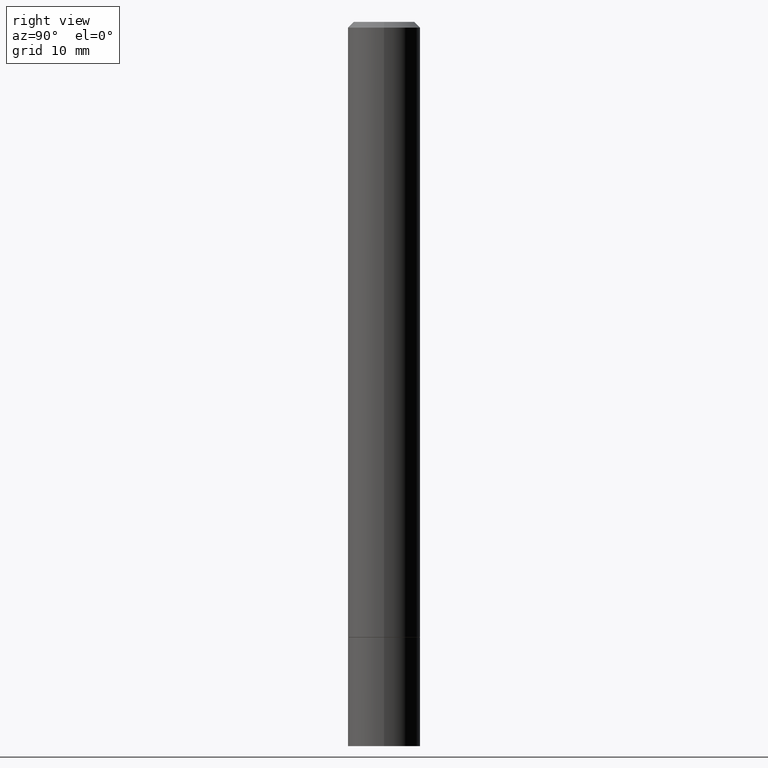
[diagram: clean part render]
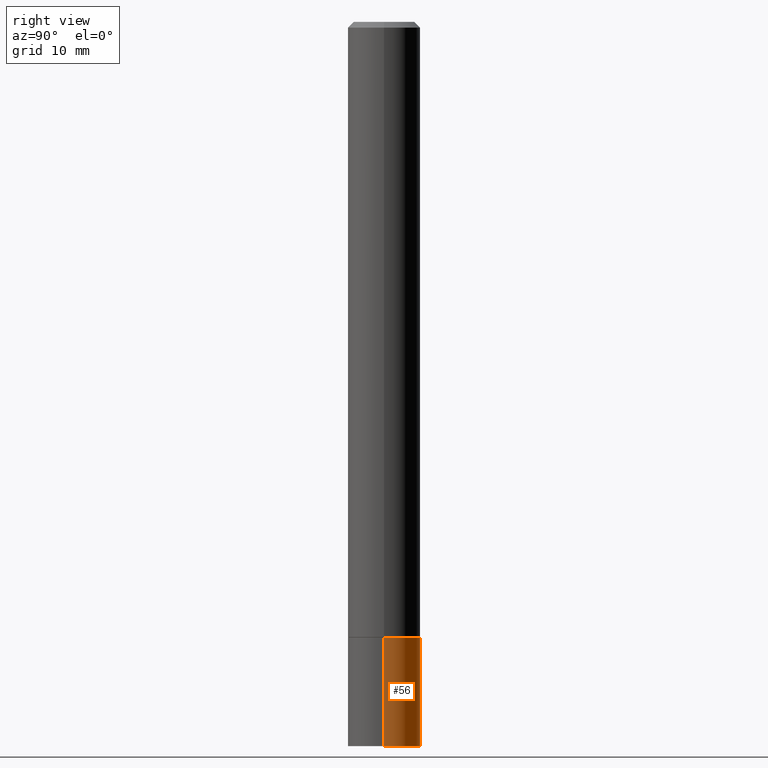
[diagram: same view with one face highlighted and labeled with its STEP entity id]
A machine part, right view. The second image highlights one B-rep face of the part: STEP entity #56.
In plain terms, the highlighted cylindrical surface (edge-blend (fillet) strip) has radius 3.175 mm, axis along (-0, 0, 1).
Its self-contained STEP definition (entity closure, byte-faithful):
#1 = CYLINDRICAL_SURFACE ( 'NONE', #162, 0.1250000000000000000 ) ;
#12 = VECTOR ( 'NONE', #145, 39.37007874015748143 ) ;
#32 = DIRECTION ( 'NONE',  ( -2.445468806185136597E-29, 3.491481338843145583E-15, 1.000000000000000000 ) ) ;
#35 = ORIENTED_EDGE ( 'NONE', *, *, #188, .F. ) ;
#36 = LINE ( 'NONE', #68, #12 ) ;
#56 = ADVANCED_FACE ( 'NONE', ( #318 ), #1, .T. ) ;
#65 = LINE ( 'NONE', #236, #113 ) ;
#68 = CARTESIAN_POINT ( 'NONE',  ( -0.1250000000000000000, 8.881784197001252323E-16, -6.148668862818632227E-30 ) ) ;
#71 = ORIENTED_EDGE ( 'NONE', *, *, #265, .T. ) ;
#93 = DIRECTION ( 'NONE',  ( -2.445468806185136877E-29, 3.491481338843145188E-15, 1.000000000000000000 ) ) ;
#99 = ORIENTED_EDGE ( 'NONE', *, *, #192, .F. ) ;
#113 = VECTOR ( 'NONE', #93, 39.37007874015748143 ) ;
#136 = EDGE_LOOP ( 'NONE', ( #200, #71, #35, #99 ) ) ;
#139 = AXIS2_PLACEMENT_3D ( 'NONE', #147, #206, #323 ) ;
#143 = DIRECTION ( 'NONE',  ( 1.000000000000000000, -6.982962677686266711E-15, 4.876176775795935793E-29 ) ) ;
#144 = CIRCLE ( 'NONE', #139, 0.1250000000000000000 ) ;
#145 = DIRECTION ( 'NONE',  ( -2.445468806185136877E-29, 3.491481338843145188E-15, 1.000000000000000000 ) ) ;
#147 = CARTESIAN_POINT ( 'NONE',  ( 5.196621213143415268E-29, -7.419397845041685201E-15, -2.125000000000000000 ) ) ;
#162 = AXIS2_PLACEMENT_3D ( 'NONE', #201, #32, #143 ) ;
#174 = EDGE_CURVE ( 'NONE', #222, #303, #317, .T. ) ;
#175 = CARTESIAN_POINT ( 'NONE',  ( 6.113672015462842613E-29, -8.728703347107864943E-15, -2.500000000000000000 ) ) ;
#176 = CARTESIAN_POINT ( 'NONE',  ( -0.1250000000000000000, -7.185872176374649840E-15, -2.125000000000000000 ) ) ;
#180 = DIRECTION ( 'NONE',  ( 1.000000000000000000, -6.982962677686270655E-15, 0.000000000000000000 ) ) ;
#185 = CARTESIAN_POINT ( 'NONE',  ( -0.1250000000000000000, -7.185872176374649840E-15, -2.500000000000000000 ) ) ;
#188 = EDGE_CURVE ( 'NONE', #226, #197, #144, .T. ) ;
#192 = EDGE_CURVE ( 'NONE', #222, #226, #65, .T. ) ;
#197 = VERTEX_POINT ( 'NONE', #176 ) ;
#200 = ORIENTED_EDGE ( 'NONE', *, *, #174, .T. ) ;
#201 = CARTESIAN_POINT ( 'NONE',  ( 0.000000000000000000, 0.000000000000000000, 0.000000000000000000 ) ) ;
#206 = DIRECTION ( 'NONE',  ( -2.445468806185136597E-29, 3.491481338843145583E-15, 1.000000000000000000 ) ) ;
#210 = DIRECTION ( 'NONE',  ( -2.445468806185136597E-29, 3.491481338843145583E-15, 1.000000000000000000 ) ) ;
#222 = VERTEX_POINT ( 'NONE', #296 ) ;
#223 = AXIS2_PLACEMENT_3D ( 'NONE', #175, #210, #180 ) ;
#226 = VERTEX_POINT ( 'NONE', #349 ) ;
#236 = CARTESIAN_POINT ( 'NONE',  ( 0.1250000000000000000, -8.728703347107833388E-16, 6.095220969744919741E-30 ) ) ;
#265 = EDGE_CURVE ( 'NONE', #303, #197, #36, .T. ) ;
#296 = CARTESIAN_POINT ( 'NONE',  ( 0.1250000000000000000, -9.601573681818648281E-15, -2.500000000000000000 ) ) ;
#303 = VERTEX_POINT ( 'NONE', #185 ) ;
#317 = CIRCLE ( 'NONE', #223, 0.1250000000000000000 ) ;
#318 = FACE_OUTER_BOUND ( 'NONE', #136, .T. ) ;
#323 = DIRECTION ( 'NONE',  ( 1.000000000000000000, -6.982962677686270655E-15, 0.000000000000000000 ) ) ;
#349 = CARTESIAN_POINT ( 'NONE',  ( 0.1250000000000000000, -8.292268179752468540E-15, -2.125000000000000000 ) ) ;